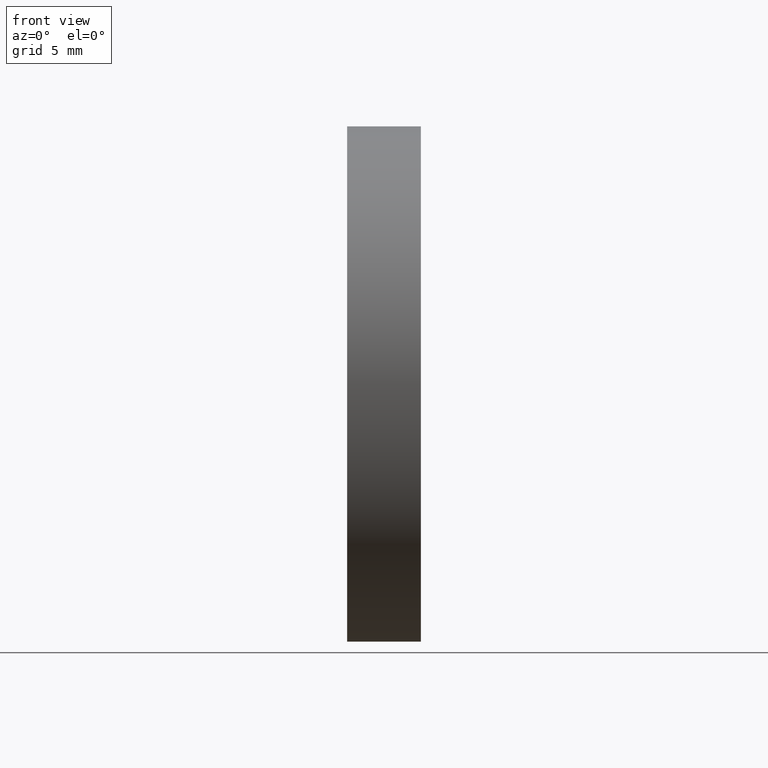
[diagram: clean part render]
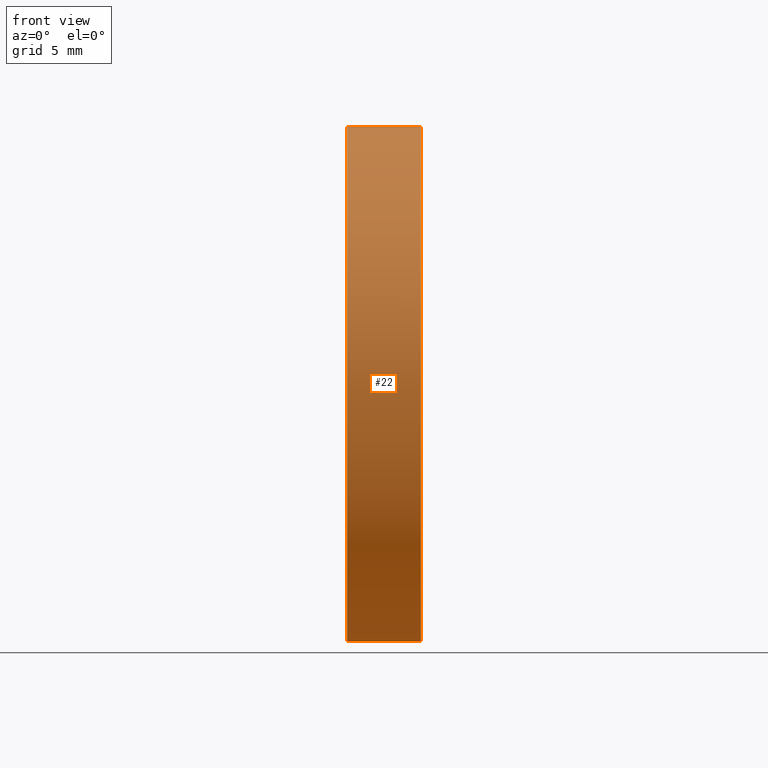
[diagram: same view with one face highlighted and labeled with its STEP entity id]
A machine part, front view. The second image highlights one B-rep face of the part: STEP entity #22.
In plain terms, the highlighted cylindrical surface (partial cylindrical patch) has radius 20 mm, axis along (-1, -0, -0).
Its self-contained STEP definition (entity closure, byte-faithful):
#1 = EDGE_LOOP ( 'NONE', ( #140, #144, #99, #163 ) ) ;
#3 = CARTESIAN_POINT ( 'NONE',  ( 105.6218371238301200, 65.15563045701519200, 20.00000000000000400 ) ) ;
#9 = VERTEX_POINT ( 'NONE', #75 ) ;
#13 = VECTOR ( 'NONE', #105, 1000.000000000000000 ) ;
#16 = CYLINDRICAL_SURFACE ( 'NONE', #96, 20.00000000000000400 ) ;
#22 = ADVANCED_FACE ( 'NONE', ( #76 ), #16, .T. ) ;
#23 = DIRECTION ( 'NONE',  ( -1.000000000000000000, -0.0000000000000000000, -0.0000000000000000000 ) ) ;
#25 = CARTESIAN_POINT ( 'NONE',  ( 105.6218371238301200, 65.15563045701519200, -20.00000000000000400 ) ) ;
#29 = VERTEX_POINT ( 'NONE', #50 ) ;
#50 = CARTESIAN_POINT ( 'NONE',  ( 119.6382000225837700, 65.15563045701519200, 20.00000000000000400 ) ) ;
#62 = VERTEX_POINT ( 'NONE', #125 ) ;
#72 = EDGE_CURVE ( 'NONE', #62, #95, #115, .T. ) ;
#75 = CARTESIAN_POINT ( 'NONE',  ( 119.6382000225837700, 65.15563045701519200, -20.00000000000000400 ) ) ;
#76 = FACE_OUTER_BOUND ( 'NONE', #1, .T. ) ;
#82 = AXIS2_PLACEMENT_3D ( 'NONE', #91, #133, #131 ) ;
#84 = DIRECTION ( 'NONE',  ( -1.000000000000000000, -0.0000000000000000000, -0.0000000000000000000 ) ) ;
#89 = EDGE_CURVE ( 'NONE', #29, #95, #151, .T. ) ;
#91 = CARTESIAN_POINT ( 'NONE',  ( 119.6382000225837700, 65.15563045701519200, 0.0000000000000000000 ) ) ;
#95 = VERTEX_POINT ( 'NONE', #159 ) ;
#96 = AXIS2_PLACEMENT_3D ( 'NONE', #135, #23, #111 ) ;
#97 = EDGE_CURVE ( 'NONE', #9, #29, #124, .T. ) ;
#99 = ORIENTED_EDGE ( 'NONE', *, *, #89, .T. ) ;
#105 = DIRECTION ( 'NONE',  ( -1.000000000000000000, -0.0000000000000000000, -0.0000000000000000000 ) ) ;
#111 = DIRECTION ( 'NONE',  ( 0.0000000000000000000, 0.0000000000000000000, 1.000000000000000000 ) ) ;
#113 = EDGE_CURVE ( 'NONE', #9, #62, #154, .T. ) ;
#115 = CIRCLE ( 'NONE', #128, 20.00000000000000400 ) ;
#117 = VECTOR ( 'NONE', #161, 1000.000000000000000 ) ;
#121 = CARTESIAN_POINT ( 'NONE',  ( 113.9119316741596200, 65.15563045701519200, 0.0000000000000000000 ) ) ;
#124 = CIRCLE ( 'NONE', #82, 20.00000000000000400 ) ;
#125 = CARTESIAN_POINT ( 'NONE',  ( 113.9119316741596200, 65.15563045701519200, -20.00000000000000400 ) ) ;
#128 = AXIS2_PLACEMENT_3D ( 'NONE', #121, #84, #147 ) ;
#131 = DIRECTION ( 'NONE',  ( 0.0000000000000000000, 0.0000000000000000000, 1.000000000000000000 ) ) ;
#133 = DIRECTION ( 'NONE',  ( -1.000000000000000000, -0.0000000000000000000, -0.0000000000000000000 ) ) ;
#135 = CARTESIAN_POINT ( 'NONE',  ( 105.6218371238301200, 65.15563045701519200, 0.0000000000000000000 ) ) ;
#140 = ORIENTED_EDGE ( 'NONE', *, *, #113, .F. ) ;
#144 = ORIENTED_EDGE ( 'NONE', *, *, #97, .T. ) ;
#147 = DIRECTION ( 'NONE',  ( 0.0000000000000000000, 0.0000000000000000000, 1.000000000000000000 ) ) ;
#151 = LINE ( 'NONE', #3, #13 ) ;
#154 = LINE ( 'NONE', #25, #117 ) ;
#159 = CARTESIAN_POINT ( 'NONE',  ( 113.9119316741596200, 65.15563045701519200, 20.00000000000000400 ) ) ;
#161 = DIRECTION ( 'NONE',  ( -1.000000000000000000, -0.0000000000000000000, -0.0000000000000000000 ) ) ;
#163 = ORIENTED_EDGE ( 'NONE', *, *, #72, .F. ) ;